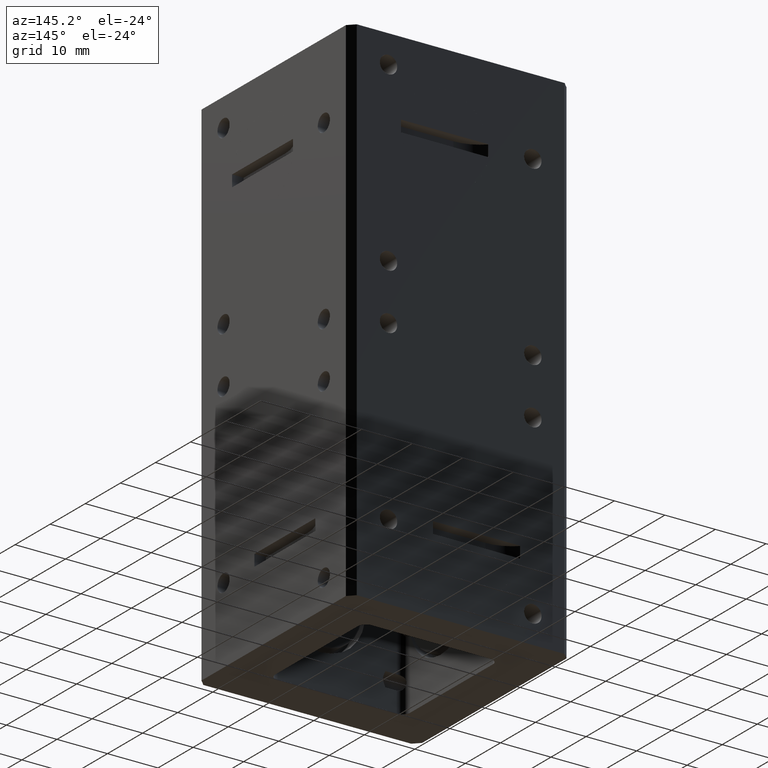
[diagram: clean part render]
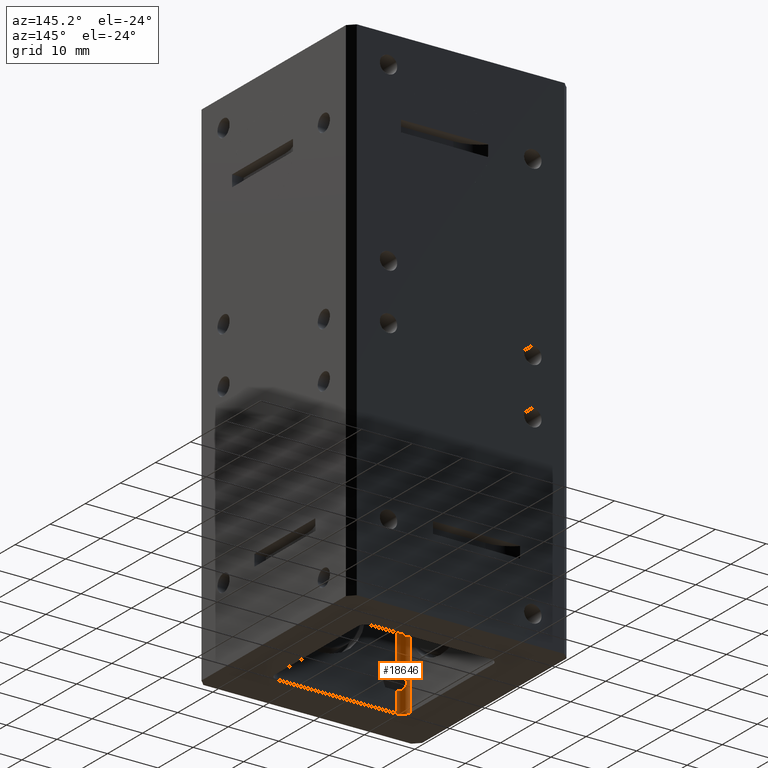
[diagram: same view with one face highlighted and labeled with its STEP entity id]
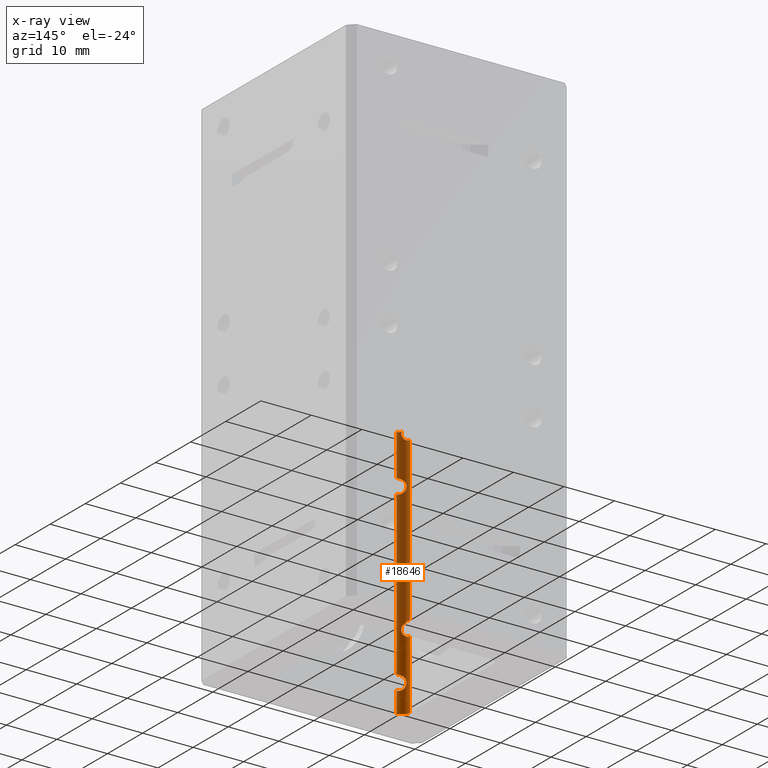
[diagram: x-ray of the same camera — body ghosted, the highlighted face saturated]
A machine part, auxiliary view. The second image highlights one B-rep face of the part: STEP entity #18646.
The next image is the same camera in x-ray: the body ghosted, the highlighted face saturated — about 72% of this face is hidden behind the body in this view.
In plain terms, the highlighted cylindrical surface (edge-blend (fillet) strip) has radius 1.5748 mm, axis along (-0, -0, -1).
Its self-contained STEP definition (entity closure, byte-faithful):
#584 = CARTESIAN_POINT ( 'NONE',  ( -0.4800605307809068800, -0.5240194361774869192, -1.837072645306257579 ) ) ;
#773 = ORIENTED_EDGE ( 'NONE', *, *, #3319, .F. ) ;
#861 = CARTESIAN_POINT ( 'NONE',  ( -0.5080766034147825572, -0.5077158073182106435, -1.740579345393841404 ) ) ;
#904 = CARTESIAN_POINT ( 'NONE',  ( -0.4945674566838936248, -0.5180640005671917070, -0.4575437672233306774 ) ) ;
#951 = CARTESIAN_POINT ( 'NONE',  ( -0.5259343585654774333, -0.4669583789055564149, -1.338482901711077533 ) ) ;
#1089 = CARTESIAN_POINT ( 'NONE',  ( -0.5259999999999996900, -0.4640000000000004121, 2.000000000000000000 ) ) ;
#1180 = EDGE_CURVE ( 'NONE', #17707, #1505, #16259, .T. ) ;
#1366 = DIRECTION ( 'NONE',  ( -0.000000000000000000, -0.000000000000000000, -1.000000000000000000 ) ) ;
#1432 = B_SPLINE_CURVE_WITH_KNOTS ( 'NONE', 3,
 ( #16836, #8215, #2305, #13690, #16739, #3659, #1916, #9559, #18289, #16540, #5135, #15477, #12339, #14055, #16935, #8116 ),
 .UNSPECIFIED., .F., .F.,
 ( 4, 2, 2, 2, 2, 2, 2, 4 ),
 ( 0.002191883056106249793, 0.002880773752024866526, 0.003225219099984174241, 0.003569664447943481957, 0.003914109795902789672, 0.004258555143862097388, 0.004603000491821405103, 0.004947445839780712819 ),
 .UNSPECIFIED. ) ;
#1505 = VERTEX_POINT ( 'NONE', #3451 ) ;
#1646 = B_SPLINE_CURVE_WITH_KNOTS ( 'NONE', 3,
 ( #4988, #17954, #6465, #12198, #7978, #17858 ),
 .UNSPECIFIED., .F., .F.,
 ( 4, 2, 4 ),
 ( 0.000000000000000000, 0.0004274565740264794477, 0.0008549131480529588954 ),
 .UNSPECIFIED. ) ;
#1745 = CARTESIAN_POINT ( 'NONE',  ( -0.5063414366933465249, -0.5093875513858039383, -1.367504378183140634 ) ) ;
#1916 = CARTESIAN_POINT ( 'NONE',  ( -0.5046435363488672721, -0.5109294802294195303, -0.06695389893264136472 ) ) ;
#2020 = ORIENTED_EDGE ( 'NONE', *, *, #2110, .F. ) ;
#2045 = EDGE_CURVE ( 'NONE', #18254, #8067, #18105, .T. ) ;
#2046 = CARTESIAN_POINT ( 'NONE',  ( -0.5259999999999996900, -0.4720767367316732743, -1.463373774496715463 ) ) ;
#2110 = EDGE_CURVE ( 'NONE', #9534, #2163, #5735, .T. ) ;
#2129 = CIRCLE ( 'NONE', #3986, 0.06199999999999997874 ) ;
#2130 = CARTESIAN_POINT ( 'NONE',  ( -0.4839546420113904901, -0.5228301700826166742, -1.836260852446591096 ) ) ;
#2138 = VERTEX_POINT ( 'NONE', #3961 ) ;
#2146 = CARTESIAN_POINT ( 'NONE',  ( -0.5259999999999996900, -0.4640000000000004121, -1.463373774496714796 ) ) ;
#2163 = VERTEX_POINT ( 'NONE', #15664 ) ;
#2165 = CARTESIAN_POINT ( 'NONE',  ( -0.4639999999999996350, -0.5260000000000004672, -2.000000000000000000 ) ) ;
#2305 = CARTESIAN_POINT ( 'NONE',  ( -0.4942933086953562594, -0.5181507638207970556, -0.03819117518813471002 ) ) ;
#2313 = DIRECTION ( 'NONE',  ( -0.000000000000000000, -0.000000000000000000, -1.000000000000000000 ) ) ;
#2322 = CARTESIAN_POINT ( 'NONE',  ( -0.5006917666615807727, -0.5141098775163454038, -1.828850956429127983 ) ) ;
#2357 = CARTESIAN_POINT ( 'NONE',  ( -0.4911617163832823207, -0.5198696501945959669, -0.4590104753257961967 ) ) ;
#2481 = EDGE_CURVE ( 'NONE', #2163, #17707, #3837, .T. ) ;
#2610 = CARTESIAN_POINT ( 'NONE',  ( -0.5259999999999996900, -0.4657160629785590533, -1.328267504430809209 ) ) ;
#2711 = CARTESIAN_POINT ( 'NONE',  ( -0.4639999999999996350, -0.5260000000000004672, -1.723626225503286369 ) ) ;
#3219 = CARTESIAN_POINT ( 'NONE',  ( -0.5125964702637382242, -0.5026565007779002503, -1.359723019366104513 ) ) ;
#3297 = EDGE_CURVE ( 'NONE', #12573, #8067, #12783, .T. ) ;
#3319 = EDGE_CURVE ( 'NONE', #14159, #9534, #17471, .T. ) ;
#3451 = CARTESIAN_POINT ( 'NONE',  ( -0.5259999999999996900, -0.4640000000000004121, -2.000000000000000000 ) ) ;
#3516 = CARTESIAN_POINT ( 'NONE',  ( -0.4639999999999996350, -0.5260000000000004672, -1.838373774496713686 ) ) ;
#3657 = ORIENTED_EDGE ( 'NONE', *, *, #1180, .F. ) ;
#3659 = CARTESIAN_POINT ( 'NONE',  ( -0.5025317252622549802, -0.5126243802454292231, -0.06334920252462218626 ) ) ;
#3776 = CARTESIAN_POINT ( 'NONE',  ( -0.5143834182661858323, -0.5001711804669970451, -1.753520575853777075 ) ) ;
#3837 = B_SPLINE_CURVE_WITH_KNOTS ( 'NONE', 3,
 ( #16288, #14858, #13634, #7591, #6147, #3219, #9114, #1745, #7685, #6260, #12093, #17935, #4786, #15046, #13917, #6446, #6643, #16970, #6554, #14088, #11125, #12276, #16772, #16676, #2046, #2146 ),
 .UNSPECIFIED., .F., .F.,
 ( 4, 2, 2, 2, 2, 2, 2, 2, 2, 2, 2, 2, 4 ),
 ( 9.432879486097944040E-05, 0.0007009684254759466311, 0.001004288240783429102, 0.001307608056090911680, 0.001610927871398394259, 0.001914247686705876621, 0.002217567502013359417, 0.002520887317320841779, 0.003127526947935806937, 0.003430846763243288865, 0.003734166578550771661, 0.004340806209165748962, 0.004947445839780727564 ),
 .UNSPECIFIED. ) ;
#3871 = CARTESIAN_POINT ( 'NONE',  ( -0.4639999999999996350, -0.5260000000000004672, -1.723626225503286369 ) ) ;
#3886 = FACE_OUTER_BOUND ( 'NONE', #14331, .T. ) ;
#3961 = CARTESIAN_POINT ( 'NONE',  ( -0.4954049657382933458, -0.5174577228000690754, -0.01994303941309640005 ) ) ;
#3986 = AXIS2_PLACEMENT_3D ( 'NONE', #6673, #11061, #11157 ) ;
#4006 = CARTESIAN_POINT ( 'NONE',  ( -0.5259999999999996900, -0.4640000000000004121, -1.463373774496714796 ) ) ;
#4016 = CARTESIAN_POINT ( 'NONE',  ( -0.4722337221979729383, -0.5260000000000005782, -0.3486262255032862578 ) ) ;
#4289 = VECTOR ( 'NONE', #9616, 39.37007874015748143 ) ;
#4398 = CARTESIAN_POINT ( 'NONE',  ( -0.5100380532834817293, -0.5055989676938172916, -0.3685806535887498070 ) ) ;
#4786 = CARTESIAN_POINT ( 'NONE',  ( -0.4958368204371459975, -0.5172060323780219848, -1.392004319997351525 ) ) ;
#4988 = CARTESIAN_POINT ( 'NONE',  ( -0.4639999999999996350, -0.5260000000000004672, -0.02637377449671405791 ) ) ;
#5036 = ORIENTED_EDGE ( 'NONE', *, *, #16827, .T. ) ;
#5135 = CARTESIAN_POINT ( 'NONE',  ( -0.5184490201551381627, -0.4939626792830730251, -0.08285386788698928529 ) ) ;
#5150 = CARTESIAN_POINT ( 'NONE',  ( -0.5134530852997652994, -0.5015438411483310599, -1.812161033722147652 ) ) ;
#5253 = CARTESIAN_POINT ( 'NONE',  ( -0.5179793845553417597, -0.4944996072635428064, -1.776933392470239070 ) ) ;
#5268 = DIRECTION ( 'NONE',  ( -0.000000000000000000, -0.000000000000000000, -1.000000000000000000 ) ) ;
#5397 = CARTESIAN_POINT ( 'NONE',  ( -0.5033716500946522343, -0.5119985070921192483, -0.4516603289523954401 ) ) ;
#5592 = CARTESIAN_POINT ( 'NONE',  ( -0.5179793845553417597, -0.4944996072635425288, -0.4019333924702383487 ) ) ;
#5735 = B_SPLINE_CURVE_WITH_KNOTS ( 'NONE', 3,
 ( #9746, #2610, #951, #11387 ),
 .UNSPECIFIED., .F., .F.,
 ( 4, 4 ),
 ( 0.000000000000000000, 0.0007784132727564688214 ),
 .UNSPECIFIED. ) ;
#5737 = AXIS2_PLACEMENT_3D ( 'NONE', #12757, #5268, #18319 ) ;
#5741 = CARTESIAN_POINT ( 'NONE',  ( -0.4639999999999996350, -0.5260000000000004672, -0.4633737744967136862 ) ) ;
#6021 = EDGE_CURVE ( 'NONE', #16061, #10778, #18935, .T. ) ;
#6122 = DIRECTION ( 'NONE',  ( -0.000000000000000000, -0.000000000000000000, -1.000000000000000000 ) ) ;
#6147 = CARTESIAN_POINT ( 'NONE',  ( -0.5165913373048638402, -0.4970165597083072706, -1.355757429342518305 ) ) ;
#6249 = VECTOR ( 'NONE', #12778, 39.37007874015748143 ) ;
#6260 = CARTESIAN_POINT ( 'NONE',  ( -0.5008249839844003404, -0.5139305344117770513, -1.377116821778026745 ) ) ;
#6446 = CARTESIAN_POINT ( 'NONE',  ( -0.4947446424807123710, -0.5178407873753941848, -1.415871897725896833 ) ) ;
#6465 = CARTESIAN_POINT ( 'NONE',  ( -0.4752236399262609323, -0.5252311897677449659, -0.02590654933750617672 ) ) ;
#6537 = CARTESIAN_POINT ( 'NONE',  ( -0.4639999999999996350, -0.5260000000000004672, -1.838373774496713686 ) ) ;
#6554 = CARTESIAN_POINT ( 'NONE',  ( -0.5023856023813174643, -0.5127508845678103722, -1.437992166609258549 ) ) ;
#6643 = CARTESIAN_POINT ( 'NONE',  ( -0.4964035588786459563, -0.5169727665157393126, -1.423770996830600266 ) ) ;
#6673 = CARTESIAN_POINT ( 'NONE',  ( -0.4639999999999996905, -0.4640000000000004121, -2.000000000000000000 ) ) ;
#6716 = CARTESIAN_POINT ( 'NONE',  ( -0.5103850308271972169, -0.5056216646970269624, -1.818867145086821457 ) ) ;
#6816 = CARTESIAN_POINT ( 'NONE',  ( -0.5011283769744085959, -0.5140475647311033569, -1.732824177610986283 ) ) ;
#6919 = ORIENTED_EDGE ( 'NONE', *, *, #15885, .T. ) ;
#7125 = CARTESIAN_POINT ( 'NONE',  ( -0.4803880199451663335, -0.5243059166902992452, -0.3496148059378186290 ) ) ;
#7159 = ORIENTED_EDGE ( 'NONE', *, *, #2045, .T. ) ;
#7217 = CARTESIAN_POINT ( 'NONE',  ( -0.5143834182661859433, -0.5001711804669967121, -0.3785205758537766307 ) ) ;
#7309 = CARTESIAN_POINT ( 'NONE',  ( -0.5177727729042514992, -0.4948737621453548896, -0.3978184162358543441 ) ) ;
#7537 = ORIENTED_EDGE ( 'NONE', *, *, #13353, .F. ) ;
#7591 = CARTESIAN_POINT ( 'NONE',  ( -0.5184977624633860804, -0.4938025763620952358, -1.354115389697713390 ) ) ;
#7685 = CARTESIAN_POINT ( 'NONE',  ( -0.5043726166903046426, -0.5111082745775591407, -1.370514046521271290 ) ) ;
#7731 = ORIENTED_EDGE ( 'NONE', *, *, #15918, .F. ) ;
#7793 = ORIENTED_EDGE ( 'NONE', *, *, #6021, .F. ) ;
#7978 = CARTESIAN_POINT ( 'NONE',  ( -0.4909337590634260118, -0.5200844357440931320, -0.02226549865213079196 ) ) ;
#8067 = VERTEX_POINT ( 'NONE', #17654 ) ;
#8116 = CARTESIAN_POINT ( 'NONE',  ( -0.5259999999999996900, -0.4640000000000004121, -0.08837377449671507401 ) ) ;
#8215 = CARTESIAN_POINT ( 'NONE',  ( -0.4939330585519350891, -0.5183224284467004006, -0.02887475824509682862 ) ) ;
#8270 = CARTESIAN_POINT ( 'NONE',  ( -0.5006917666615809948, -0.5141098775163454038, -0.4538509564291279830 ) ) ;
#8362 = CARTESIAN_POINT ( 'NONE',  ( -0.5171989980261600950, -0.4960158439346769588, -0.4223254499743332446 ) ) ;
#8454 = CARTESIAN_POINT ( 'NONE',  ( -0.4639999999999996350, -0.5260000000000004672, 2.000000000000000000 ) ) ;
#8463 = CARTESIAN_POINT ( 'NONE',  ( -0.4639999999999996350, -0.5260000000000004672, -0.3486262255032862578 ) ) ;
#8568 = VECTOR ( 'NONE', #2313, 39.37007874015748143 ) ;
#8747 = CARTESIAN_POINT ( 'NONE',  ( -0.5011283769744084848, -0.5140475647311034679, -0.3578241776109852279 ) ) ;
#9114 = CARTESIAN_POINT ( 'NONE',  ( -0.5104874003673995908, -0.5051308727008891886, -1.362063834814667196 ) ) ;
#9534 = VERTEX_POINT ( 'NONE', #11633 ) ;
#9559 = CARTESIAN_POINT ( 'NONE',  ( -0.5092661123389455868, -0.5064882599698214971, -0.07349948751648277545 ) ) ;
#9616 = DIRECTION ( 'NONE',  ( -0.000000000000000000, -0.000000000000000000, -1.000000000000000000 ) ) ;
#9666 = CARTESIAN_POINT ( 'NONE',  ( -0.5131705498603025273, -0.5018448608104119080, -1.750034066246179298 ) ) ;
#9704 = CARTESIAN_POINT ( 'NONE',  ( -0.4639999999999996350, -0.5260000000000004672, -0.4633737744967136862 ) ) ;
#9711 = CARTESIAN_POINT ( 'NONE',  ( -0.4639999999999996350, -0.5260000000000004672, 2.000000000000000000 ) ) ;
#9746 = CARTESIAN_POINT ( 'NONE',  ( -0.5259999999999996900, -0.4640000000000004121, -1.318052107150540442 ) ) ;
#9772 = CYLINDRICAL_SURFACE ( 'NONE', #5737, 0.06199999999999997874 ) ;
#9791 = ORIENTED_EDGE ( 'NONE', *, *, #3297, .F. ) ;
#9804 = CARTESIAN_POINT ( 'NONE',  ( -0.5103850308271973280, -0.5056216646970268513, -0.4438671450868214019 ) ) ;
#9909 = CARTESIAN_POINT ( 'NONE',  ( -0.4948732702465229449, -0.5183342614734536280, -0.3541592279214234584 ) ) ;
#10382 = CARTESIAN_POINT ( 'NONE',  ( -0.5259999999999996900, -0.4640000000000004121, -0.08837377449671507401 ) ) ;
#10778 = VERTEX_POINT ( 'NONE', #2711 ) ;
#11061 = DIRECTION ( 'NONE',  ( 0.000000000000000000, 0.000000000000000000, 1.000000000000000000 ) ) ;
#11110 = CARTESIAN_POINT ( 'NONE',  ( -0.5169199073316264048, -0.4963138314477291146, -1.764886730572813534 ) ) ;
#11125 = CARTESIAN_POINT ( 'NONE',  ( -0.5082391439958362511, -0.5075498738703279056, -1.447111899923237299 ) ) ;
#11153 = CARTESIAN_POINT ( 'NONE',  ( -0.4800605307809071021, -0.5240194361774871412, -0.4620726453062576344 ) ) ;
#11157 = DIRECTION ( 'NONE',  ( -1.000000000000000000, 0.000000000000000000, 0.000000000000000000 ) ) ;
#11179 = VERTEX_POINT ( 'NONE', #2165 ) ;
#11201 = CARTESIAN_POINT ( 'NONE',  ( -0.5177727729042513882, -0.4948737621453551117, -1.772818416235854677 ) ) ;
#11340 = CARTESIAN_POINT ( 'NONE',  ( -0.5080766034147827792, -0.5077158073182106435, -0.3655793453938409598 ) ) ;
#11351 = ORIENTED_EDGE ( 'NONE', *, *, #2481, .F. ) ;
#11387 = CARTESIAN_POINT ( 'NONE',  ( -0.5258869550361935374, -0.4677422982709383836, -1.348698298991346300 ) ) ;
#11633 = CARTESIAN_POINT ( 'NONE',  ( -0.5259999999999996900, -0.4640000000000004121, -1.318052107150540442 ) ) ;
#11678 = CARTESIAN_POINT ( 'NONE',  ( -0.5259999999999996900, -0.4640000000000004121, 2.000000000000000000 ) ) ;
#11713 = CARTESIAN_POINT ( 'NONE',  ( -0.5162749203669108056, -0.4973792725084690280, -0.3860177241846818319 ) ) ;
#12093 = CARTESIAN_POINT ( 'NONE',  ( -0.4992631379900469568, -0.5150167829442117151, -1.380695062315393962 ) ) ;
#12198 = CARTESIAN_POINT ( 'NONE',  ( -0.4859917349338623849, -0.5222373787885982166, -0.02382919757589957790 ) ) ;
#12276 = CARTESIAN_POINT ( 'NONE',  ( -0.5144495685650222194, -0.5005734129392690468, -1.454547618657603625 ) ) ;
#12339 = CARTESIAN_POINT ( 'NONE',  ( -0.5235320728589405448, -0.4818890677558541058, -0.08673946730878605293 ) ) ;
#12463 = CARTESIAN_POINT ( 'NONE',  ( -0.4911617163832822652, -0.5198696501945957449, -1.834010475325795975 ) ) ;
#12549 = CARTESIAN_POINT ( 'NONE',  ( -0.5179787182916548716, -0.4945007864227369265, -1.789152900669661594 ) ) ;
#12573 = VERTEX_POINT ( 'NONE', #5741 ) ;
#12650 = CARTESIAN_POINT ( 'NONE',  ( -0.4948732702465228894, -0.5183342614734538500, -1.729159227921424069 ) ) ;
#12757 = CARTESIAN_POINT ( 'NONE',  ( -0.4639999999999996905, -0.4640000000000004121, 2.000000000000000000 ) ) ;
#12762 = VECTOR ( 'NONE', #6122, 39.37007874015748143 ) ;
#12778 = DIRECTION ( 'NONE',  ( -0.000000000000000000, -0.000000000000000000, -1.000000000000000000 ) ) ;
#12783 = B_SPLINE_CURVE_WITH_KNOTS ( 'NONE', 3,
 ( #9704, #14222, #18455, #11153, #16994, #2357, #904, #8270, #5397, #9804, #15620, #8362, #17563, #5592, #7309, #14499, #11713, #7217, #14405, #4398, #11340, #8747, #9909, #7125, #4016, #8463 ),
 .UNSPECIFIED., .F., .F.,
 ( 4, 2, 2, 2, 2, 2, 2, 2, 2, 2, 2, 2, 4 ),
 ( 0.000000000000000000, 0.0003092153649862857691, 0.0006184307299725715383, 0.0009276460949588572532, 0.001236861459945143077, 0.001855292189917714506, 0.002473722919890286153, 0.002782938284876571543, 0.003092153649862857366, 0.003401369014849143189, 0.003710584379835429013, 0.004329015109807994588, 0.004947445839780561030 ),
 .UNSPECIFIED. ) ;
#12794 = EDGE_CURVE ( 'NONE', #2138, #14159, #1432, .T. ) ;
#12864 = LINE ( 'NONE', #8454, #6249 ) ;
#13353 = EDGE_CURVE ( 'NONE', #18254, #2138, #1646, .T. ) ;
#13634 = CARTESIAN_POINT ( 'NONE',  ( -0.5233100805077570694, -0.4835732734998536286, -1.350277571948214961 ) ) ;
#13690 = CARTESIAN_POINT ( 'NONE',  ( -0.4974239638438680555, -0.5162334766647385109, -0.05122562614689873950 ) ) ;
#13800 = CARTESIAN_POINT ( 'NONE',  ( -0.4721477244022576070, -0.5255945448484911076, -1.838121648468858504 ) ) ;
#13917 = CARTESIAN_POINT ( 'NONE',  ( -0.4944158322889803392, -0.5180267804221753147, -1.403853650443894985 ) ) ;
#13991 = CARTESIAN_POINT ( 'NONE',  ( -0.5033716500946522343, -0.5119985070921193593, -1.826660328952395718 ) ) ;
#14030 = LINE ( 'NONE', #9711, #4289 ) ;
#14055 = CARTESIAN_POINT ( 'NONE',  ( -0.5254859967659832876, -0.4731410418306238319, -0.08805568443310758664 ) ) ;
#14073 = CARTESIAN_POINT ( 'NONE',  ( -0.5100380532834813962, -0.5055989676938175137, -1.743580653588750140 ) ) ;
#14088 = CARTESIAN_POINT ( 'NONE',  ( -0.5061428273361133767, -0.5095421268765423228, -1.444224450483224231 ) ) ;
#14159 = VERTEX_POINT ( 'NONE', #10382 ) ;
#14222 = CARTESIAN_POINT ( 'NONE',  ( -0.4681134704219367393, -0.5260000000000005782, -0.4633737744967137417 ) ) ;
#14331 = EDGE_LOOP ( 'NONE', ( #2020, #773, #17103, #7537, #7159, #9791, #6919, #7793, #5036, #7731, #3657, #11351 ) ) ;
#14405 = CARTESIAN_POINT ( 'NONE',  ( -0.5131705498603026383, -0.5018448608104116859, -0.3750340662461788543 ) ) ;
#14499 = CARTESIAN_POINT ( 'NONE',  ( -0.5169199073316265158, -0.4963138314477286150, -0.3898867305728129229 ) ) ;
#14858 = CARTESIAN_POINT ( 'NONE',  ( -0.5254047012285474327, -0.4757174027518916160, -1.349006436097854866 ) ) ;
#14969 = CARTESIAN_POINT ( 'NONE',  ( -0.4639999999999996350, -0.5260000000000004672, -0.02637377449671405791 ) ) ;
#15046 = CARTESIAN_POINT ( 'NONE',  ( -0.4946588621861973123, -0.5178934057784991829, -1.399881291942372430 ) ) ;
#15305 = CARTESIAN_POINT ( 'NONE',  ( -0.4681134704219367948, -0.5260000000000006892, -1.838373774496713686 ) ) ;
#15477 = CARTESIAN_POINT ( 'NONE',  ( -0.5220612827507316034, -0.4861663120751856249, -0.08571766248084330964 ) ) ;
#15620 = CARTESIAN_POINT ( 'NONE',  ( -0.5134530852997654105, -0.5015438411483310599, -0.4371610337221477072 ) ) ;
#15664 = CARTESIAN_POINT ( 'NONE',  ( -0.5258869550361935374, -0.4677422982709383836, -1.348698298991346300 ) ) ;
#15885 = EDGE_CURVE ( 'NONE', #12573, #10778, #14030, .T. ) ;
#15918 = EDGE_CURVE ( 'NONE', #1505, #11179, #2129, .T. ) ;
#16061 = VERTEX_POINT ( 'NONE', #3516 ) ;
#16259 = LINE ( 'NONE', #11678, #12762 ) ;
#16288 = CARTESIAN_POINT ( 'NONE',  ( -0.5258869550361935374, -0.4677422982709383836, -1.348698298991346300 ) ) ;
#16540 = CARTESIAN_POINT ( 'NONE',  ( -0.5162609197143144257, -0.4975834772168062914, -0.08096705174162191487 ) ) ;
#16676 = CARTESIAN_POINT ( 'NONE',  ( -0.5243747420697860706, -0.4800705093729952244, -1.462422930775319818 ) ) ;
#16739 = CARTESIAN_POINT ( 'NONE',  ( -0.4989199064067370570, -0.5152798629335406666, -0.05549972607342026909 ) ) ;
#16772 = CARTESIAN_POINT ( 'NONE',  ( -0.5186044586403097956, -0.4943599052715827447, -1.458060194566113799 ) ) ;
#16827 = EDGE_CURVE ( 'NONE', #16061, #11179, #12864, .T. ) ;
#16836 = CARTESIAN_POINT ( 'NONE',  ( -0.4954049657382933458, -0.5174577228000690754, -0.01994303941309640005 ) ) ;
#16935 = CARTESIAN_POINT ( 'NONE',  ( -0.5259999999999999121, -0.4685859094156062388, -0.08837377449671508789 ) ) ;
#16944 = CARTESIAN_POINT ( 'NONE',  ( -0.4639999999999996350, -0.5260000000000004672, 2.000000000000000000 ) ) ;
#16956 = CARTESIAN_POINT ( 'NONE',  ( -0.5162749203669108056, -0.4973792725084693611, -1.761017724184682498 ) ) ;
#16970 = CARTESIAN_POINT ( 'NONE',  ( -0.5006958867931637913, -0.5140043802835964071, -1.434624963843330603 ) ) ;
#16994 = CARTESIAN_POINT ( 'NONE',  ( -0.4839546420113907121, -0.5228301700826166742, -0.4612608524465908189 ) ) ;
#17049 = CARTESIAN_POINT ( 'NONE',  ( -0.4722337221979726607, -0.5260000000000002451, -1.723626225503285925 ) ) ;
#17103 = ORIENTED_EDGE ( 'NONE', *, *, #12794, .F. ) ;
#17471 = LINE ( 'NONE', #1089, #17928 ) ;
#17563 = CARTESIAN_POINT ( 'NONE',  ( -0.5179787182916547605, -0.4945007864227365935, -0.4141529006696611503 ) ) ;
#17654 = CARTESIAN_POINT ( 'NONE',  ( -0.4639999999999996350, -0.5260000000000004672, -0.3486262255032862578 ) ) ;
#17707 = VERTEX_POINT ( 'NONE', #4006 ) ;
#17858 = CARTESIAN_POINT ( 'NONE',  ( -0.4954049657382933458, -0.5174577228000690754, -0.01994303941309640005 ) ) ;
#17928 = VECTOR ( 'NONE', #1366, 39.37007874015748143 ) ;
#17935 = CARTESIAN_POINT ( 'NONE',  ( -0.4967826255180329276, -0.5166450425683779546, -1.388098400091485551 ) ) ;
#17954 = CARTESIAN_POINT ( 'NONE',  ( -0.4696864249743807895, -0.5260000000000005782, -0.02637377449671406138 ) ) ;
#18105 = LINE ( 'NONE', #16944, #8568 ) ;
#18254 = VERTEX_POINT ( 'NONE', #14969 ) ;
#18289 = CARTESIAN_POINT ( 'NONE',  ( -0.5116663401973233771, -0.5038368382725186834, -0.07628463134973878512 ) ) ;
#18308 = CARTESIAN_POINT ( 'NONE',  ( -0.4945674566838934583, -0.5180640005671918180, -1.832543767223330455 ) ) ;
#18319 = DIRECTION ( 'NONE',  ( -1.000000000000000000, 0.000000000000000000, 0.000000000000000000 ) ) ;
#18408 = CARTESIAN_POINT ( 'NONE',  ( -0.5171989980261600950, -0.4960158439346771808, -1.797325449974332967 ) ) ;
#18455 = CARTESIAN_POINT ( 'NONE',  ( -0.4721477244022576070, -0.5255945448484911076, -0.4631216484688583934 ) ) ;
#18512 = CARTESIAN_POINT ( 'NONE',  ( -0.4803880199451663335, -0.5243059166902993562, -1.724614805937819240 ) ) ;
#18646 = ADVANCED_FACE ( 'NONE', ( #3886 ), #9772, .F. ) ;
#18935 = B_SPLINE_CURVE_WITH_KNOTS ( 'NONE', 3,
 ( #6537, #15305, #13800, #584, #2130, #12463, #18308, #2322, #13991, #6716, #5150, #18408, #12549, #5253, #11201, #11110, #16956, #3776, #9666, #14073, #861, #6816, #12650, #18512, #17049, #3871 ),
 .UNSPECIFIED., .F., .F.,
 ( 4, 2, 2, 2, 2, 2, 2, 2, 2, 2, 2, 2, 4 ),
 ( 0.000000000000000000, 0.0003092153649862885881, 0.0006184307299725771761, 0.0009276460949588657100, 0.001236861459945154352, 0.001855292189917731420, 0.002473722919890308704, 0.002782938284876586722, 0.003092153649862864739, 0.003401369014849142756, 0.003710584379835421207, 0.004329015109807980710, 0.004947445839780540214 ),
 .UNSPECIFIED. ) ;